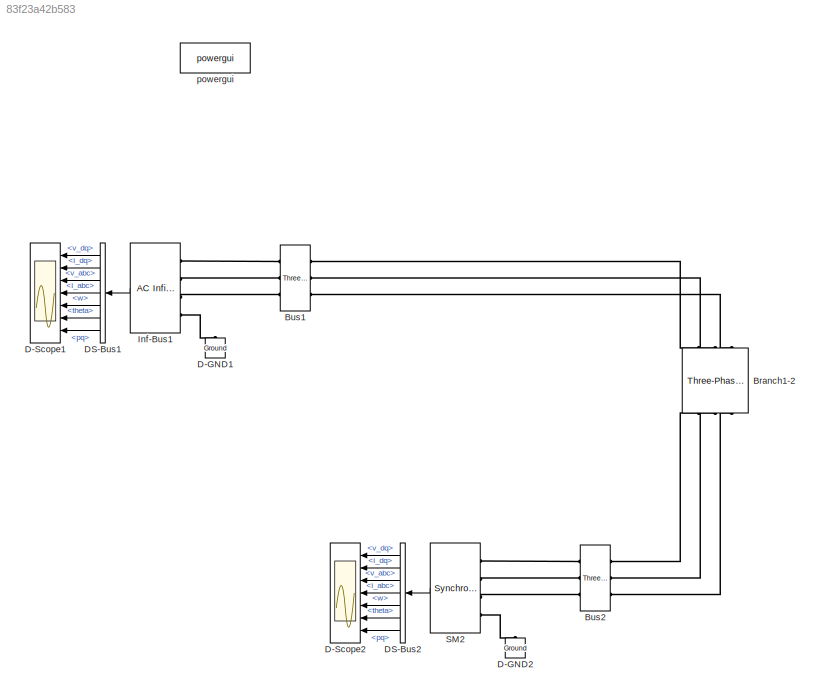
MODEL slx_83f23a42b583
KIND model
CONFIG AbsTol = auto
CONFIG EnableMultiTasking = off
CONFIG FixedStep = Ts
CONFIG MaxStep = auto
CONFIG MinStep = auto
CONFIG RelTol = 1e-3
CONFIG SampleTimeConstraint = Unconstrained
CONFIG Solver = FixedStepAuto
CONFIG SolverName = FixedStepAuto
CONFIG StartTime = 0
CONFIG StopTime = 5
BLOCK [Reference] Branch1-2  REF=powerlib/Elements/Three-Phase
Series RLC Branch
  AttributesFormatString = \n
  Ports = [0, 0, 0, 0, 0, 3, 3]
  SourceBlock = powerlib/Elements/Three-Phase\nSeries RLC Branch
  SourceProductBaseCode = PS
  SourceProductName = Simscape Power Systems
  SourceType = Three-Phase Series RLC Branch
BLOCK [Reference] Bus1  REF=SimplexPS/Three-Phase Bus
  Ports = [0, 0, 0, 0, 0, 3, 3]
  SourceBlock = SimplexPS/Three-Phase Bus
  SourceProductName = Simplex Power System
BLOCK [Reference] Bus2  REF=SimplexPS/Three-Phase Bus
  Ports = [0, 0, 0, 0, 0, 3, 3]
  SourceBlock = SimplexPS/Three-Phase Bus
  SourceProductName = Simplex Power System
BLOCK [Reference] D-GND1  REF=powerlib/Elements/Ground
  Ports = [0, 0, 0, 0, 0, 1]
  SourceBlock = powerlib/Elements/Ground
  SourceProductBaseCode = PS
  SourceProductName = Simscape Power Systems
  SourceType = Ground
BLOCK [Reference] D-GND2  REF=powerlib/Elements/Ground
  Ports = [0, 0, 0, 0, 0, 1]
  SourceBlock = powerlib/Elements/Ground
  SourceProductBaseCode = PS
  SourceProductName = Simscape Power Systems
  SourceType = Ground
BLOCK [Scope] D-Scope1
  Floating = off
  NumInputPorts = 7
  Ports = [7]
  ScopeSpecificationString = Simulink.scopes.TimeScopeBlockCfg('CurrentConfiguration', extmgr.ConfigurationSet(extmgr.Configuration('Core','General UI',true),extmgr.Configuration('Core','Source UI',true),extmgr.Configuration('Sources','WiredSimulink',true),extmgr.Configuration('Visuals','Time Domain',true,'SerializedDisplays',{struct('MinYLimReal','-0.12437','MaxYLimReal','1.11938','YLabelReal','','MinYLimMag','0.00000','MaxY...<+5545ch>
BLOCK [Scope] D-Scope2
  Floating = off
  NumInputPorts = 7
  Ports = [7]
  ScopeSpecificationString = Simulink.scopes.TimeScopeBlockCfg('CurrentConfiguration', extmgr.ConfigurationSet(extmgr.Configuration('Core','General UI',true),extmgr.Configuration('Core','Source UI',true),extmgr.Configuration('Sources','WiredSimulink',true),extmgr.Configuration('Visuals','Time Domain',true,'SerializedDisplays',{struct('MinYLimReal','-10.28666','MaxYLimReal','12.23207','YLabelReal','','MinYLimMag','0.00000','Ma...<+5557ch>
BLOCK [BusSelector] DS-Bus1
  OutputAsBus = off
  OutputSignals = v_dq,i_dq,v_abc,i_abc,w,theta,pq
  Ports = [1, 7]
BLOCK [BusSelector] DS-Bus2
  OutputAsBus = off
  OutputSignals = v_dq,i_dq,v_abc,i_abc,w,theta,pq
  Ports = [1, 7]
BLOCK [Reference] Inf-Bus1  REF=SimplexPS/AC Infinite Bus
(Voltage Type)
  Ports = [0, 1, 0, 0, 0, 4]
  SourceBlock = SimplexPS/AC Infinite Bus\n(Voltage Type)
  SourceProductName = Simplex Power System
BLOCK [Reference] SM2  REF=SimplexPS/Synchronous Machine
(dq-Frame System Object)
  Ports = [0, 1, 0, 0, 0, 4]
  SourceBlock = SimplexPS/Synchronous Machine\n(dq-Frame System Object)
  SourceProductName = Simplex Power System
BLOCK [Reference] powergui  REF=powerlib/powergui
  Ports = []
  Priority = 1
  SourceBlock = powerlib/powergui
  SourceProductBaseCode = PS
  SourceProductName = Simscape Power Systems
  SourceType = PSB option menu block
LINE DS-Bus1:1 -> D-Scope1:1
LINE DS-Bus1:2 -> D-Scope1:2
LINE DS-Bus1:3 -> D-Scope1:3
LINE DS-Bus1:4 -> D-Scope1:4
LINE DS-Bus1:5 -> D-Scope1:5
LINE DS-Bus1:6 -> D-Scope1:6
LINE DS-Bus1:7 -> D-Scope1:7
LINE DS-Bus2:1 -> D-Scope2:1
LINE DS-Bus2:2 -> D-Scope2:2
LINE DS-Bus2:3 -> D-Scope2:3
LINE DS-Bus2:4 -> D-Scope2:4
LINE DS-Bus2:5 -> D-Scope2:5
LINE DS-Bus2:6 -> D-Scope2:6
LINE DS-Bus2:7 -> D-Scope2:7
LINE Inf-Bus1:1 -> DS-Bus1:1
LINE SM2:1 -> DS-Bus2:1
PLINE Branch1-2:LConn1 -- Bus1:RConn1
PLINE Branch1-2:LConn2 -- Bus1:RConn2
PLINE Branch1-2:LConn3 -- Bus1:RConn3
PLINE Branch1-2:RConn1 -- Bus2:RConn1
PLINE Branch1-2:RConn2 -- Bus2:RConn2
PLINE Branch1-2:RConn3 -- Bus2:RConn3
PLINE Bus1:LConn1 -- Inf-Bus1:LConn1
PLINE Bus1:LConn2 -- Inf-Bus1:LConn2
PLINE Bus1:LConn3 -- Inf-Bus1:LConn3
PLINE Bus2:LConn1 -- SM2:LConn1
PLINE Bus2:LConn2 -- SM2:LConn2
PLINE Bus2:LConn3 -- SM2:LConn3
PLINE D-GND1:LConn1 -- Inf-Bus1:LConn4
PLINE D-GND2:LConn1 -- SM2:LConn4
